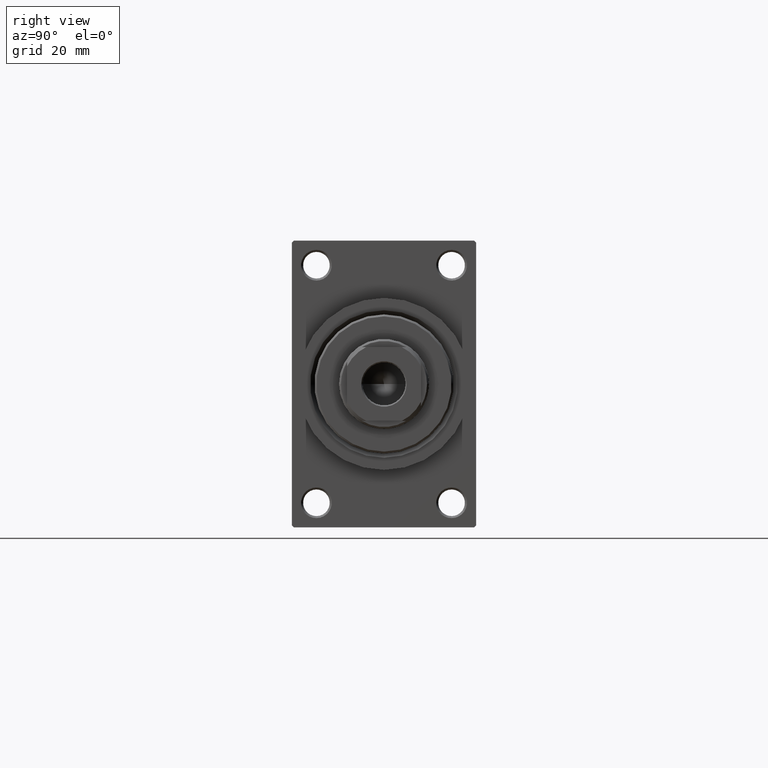
[diagram: clean part render]
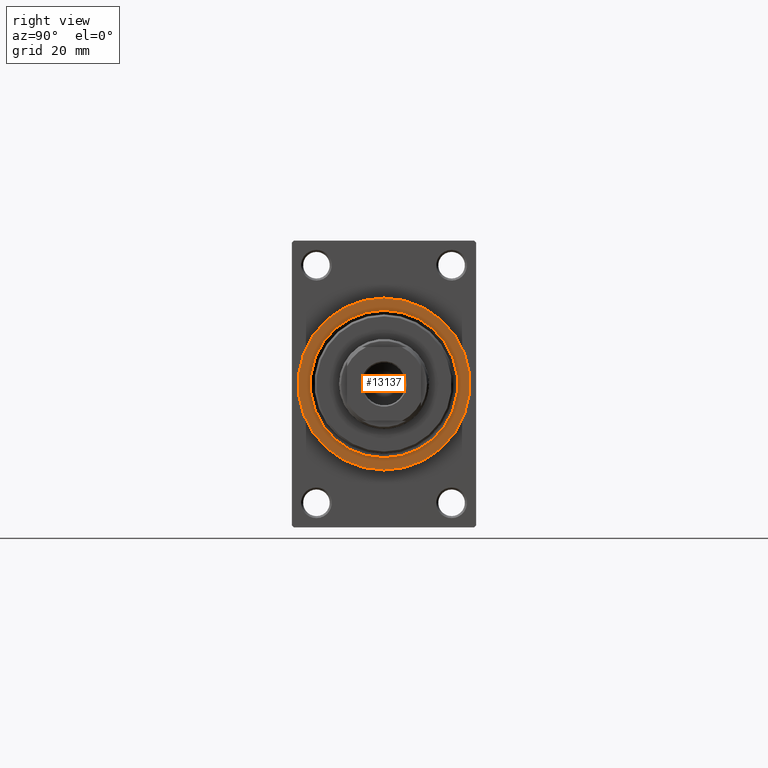
[diagram: same view with one face highlighted and labeled with its STEP entity id]
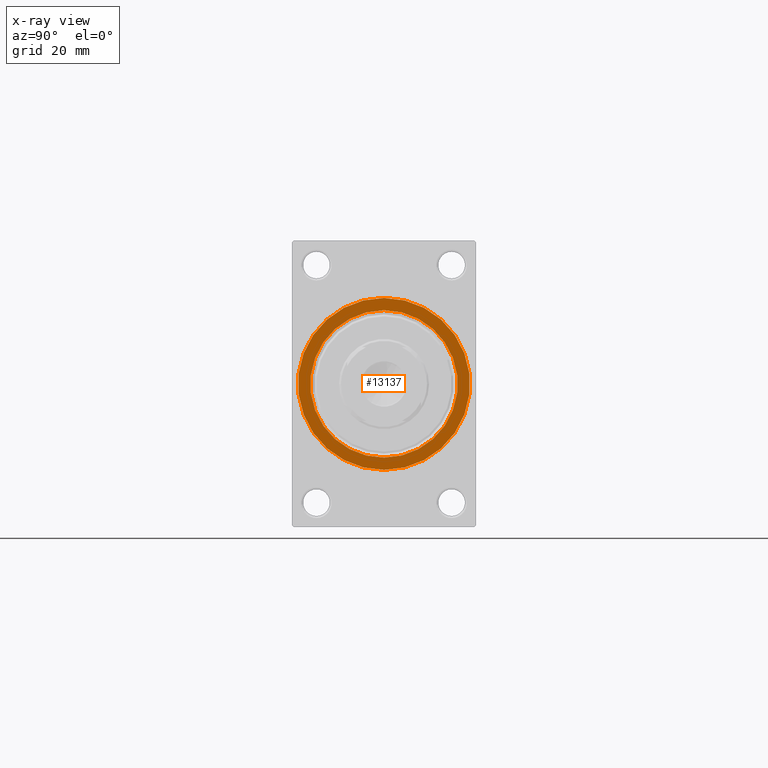
[diagram: x-ray of the same camera — body ghosted, the highlighted face saturated]
A machine part, right view. The second image highlights one B-rep face of the part: STEP entity #13137.
The next image is the same camera in x-ray: the body ghosted, the highlighted face saturated — about 0% of this face is hidden behind the body in this view.
In plain terms, the highlighted planar face has unit normal (1, 0, 0).
Its self-contained STEP definition (entity closure, byte-faithful):
#1037 = PLANE ( 'NONE',  #38730 ) ;
#3735 = DIRECTION ( 'NONE',  ( -1.000000000000000000, -0.000000000000000000, -0.000000000000000000 ) ) ;
#5643 = DIRECTION ( 'NONE',  ( 1.000000000000000000, 0.000000000000000000, 0.000000000000000000 ) ) ;
#6249 = DIRECTION ( 'NONE',  ( -1.000000000000000000, -0.000000000000000000, -0.000000000000000000 ) ) ;
#6645 = ORIENTED_EDGE ( 'NONE', *, *, #21266, .T. ) ;
#11453 = AXIS2_PLACEMENT_3D ( 'NONE', #14683, #3735, #28768 ) ;
#11917 = CIRCLE ( 'NONE', #40126, 21.00000000000000000 ) ;
#12085 = CARTESIAN_POINT ( 'NONE',  ( 123.0000000000000142, 0.000000000000000000, 0.000000000000000000 ) ) ;
#12571 = EDGE_LOOP ( 'NONE', ( #6645, #44460 ) ) ;
#12934 = CARTESIAN_POINT ( 'NONE',  ( 123.0000000000000142, 2.571758278209441661E-15, -21.00000000000000000 ) ) ;
#13137 = ADVANCED_FACE ( 'NONE', ( #22734, #37300 ), #1037, .T. ) ;
#13394 = CARTESIAN_POINT ( 'NONE',  ( 123.0000000000000142, 0.000000000000000000, 0.000000000000000000 ) ) ;
#13654 = CARTESIAN_POINT ( 'NONE',  ( 123.0000000000000142, 0.000000000000000000, 0.000000000000000000 ) ) ;
#14683 = CARTESIAN_POINT ( 'NONE',  ( 123.0000000000000142, 0.000000000000000000, 0.000000000000000000 ) ) ;
#15029 = ORIENTED_EDGE ( 'NONE', *, *, #36305, .T. ) ;
#17456 = DIRECTION ( 'NONE',  ( 1.000000000000000000, 0.000000000000000000, 0.000000000000000000 ) ) ;
#17601 = VERTEX_POINT ( 'NONE', #37458 ) ;
#17615 = AXIS2_PLACEMENT_3D ( 'NONE', #13394, #6249, #28411 ) ;
#17622 = EDGE_LOOP ( 'NONE', ( #42285, #15029 ) ) ;
#18299 = VERTEX_POINT ( 'NONE', #12934 ) ;
#20173 = DIRECTION ( 'NONE',  ( 0.000000000000000000, 0.000000000000000000, -1.000000000000000000 ) ) ;
#20586 = CIRCLE ( 'NONE', #11453, 18.00000000000002842 ) ;
#21266 = EDGE_CURVE ( 'NONE', #25512, #32413, #20586, .T. ) ;
#22734 = FACE_BOUND ( 'NONE', #12571, .T. ) ;
#23187 = AXIS2_PLACEMENT_3D ( 'NONE', #12085, #23756, #30915 ) ;
#23731 = EDGE_CURVE ( 'NONE', #32413, #25512, #29811, .T. ) ;
#23756 = DIRECTION ( 'NONE',  ( 1.000000000000000000, 0.000000000000000000, 0.000000000000000000 ) ) ;
#25359 = CARTESIAN_POINT ( 'NONE',  ( 123.0000000000000142, 0.000000000000000000, -18.00000000000002842 ) ) ;
#25512 = VERTEX_POINT ( 'NONE', #25359 ) ;
#28411 = DIRECTION ( 'NONE',  ( 0.000000000000000000, 0.000000000000000000, -1.000000000000000000 ) ) ;
#28768 = DIRECTION ( 'NONE',  ( 0.000000000000000000, 0.000000000000000000, -1.000000000000000000 ) ) ;
#29811 = CIRCLE ( 'NONE', #17615, 18.00000000000002842 ) ;
#30915 = DIRECTION ( 'NONE',  ( 0.000000000000000000, 0.000000000000000000, -1.000000000000000000 ) ) ;
#31879 = CARTESIAN_POINT ( 'NONE',  ( 123.0000000000000142, 0.000000000000000000, 0.000000000000000000 ) ) ;
#32413 = VERTEX_POINT ( 'NONE', #46006 ) ;
#36305 = EDGE_CURVE ( 'NONE', #18299, #17601, #43796, .T. ) ;
#37300 = FACE_OUTER_BOUND ( 'NONE', #17622, .T. ) ;
#37458 = CARTESIAN_POINT ( 'NONE',  ( 123.0000000000000142, 0.000000000000000000, 21.00000000000000000 ) ) ;
#38716 = DIRECTION ( 'NONE',  ( 0.000000000000000000, 0.000000000000000000, -1.000000000000000000 ) ) ;
#38730 = AXIS2_PLACEMENT_3D ( 'NONE', #13654, #17456, #38716 ) ;
#40126 = AXIS2_PLACEMENT_3D ( 'NONE', #31879, #5643, #20173 ) ;
#41317 = EDGE_CURVE ( 'NONE', #17601, #18299, #11917, .T. ) ;
#42285 = ORIENTED_EDGE ( 'NONE', *, *, #41317, .T. ) ;
#43796 = CIRCLE ( 'NONE', #23187, 21.00000000000000000 ) ;
#44460 = ORIENTED_EDGE ( 'NONE', *, *, #23731, .T. ) ;
#46006 = CARTESIAN_POINT ( 'NONE',  ( 123.0000000000000142, 2.204364238465238978E-15, 18.00000000000002842 ) ) ;